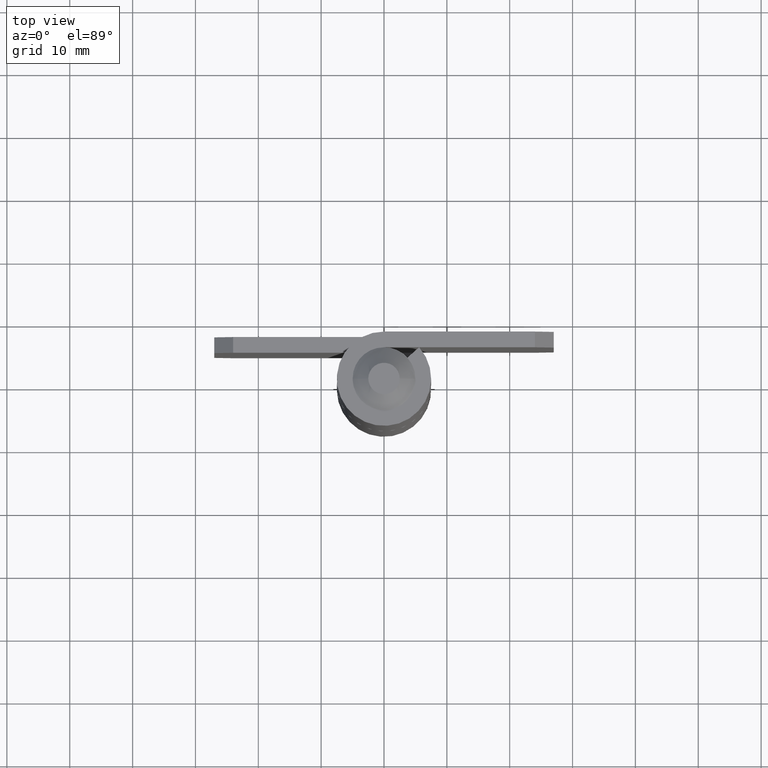
[diagram: clean part render]
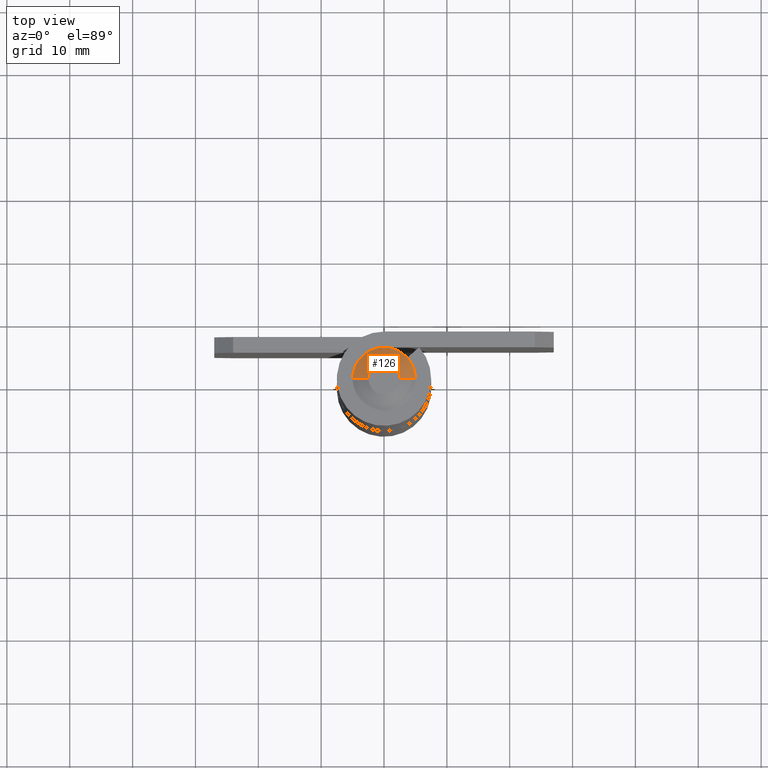
[diagram: same view with one face highlighted and labeled with its STEP entity id]
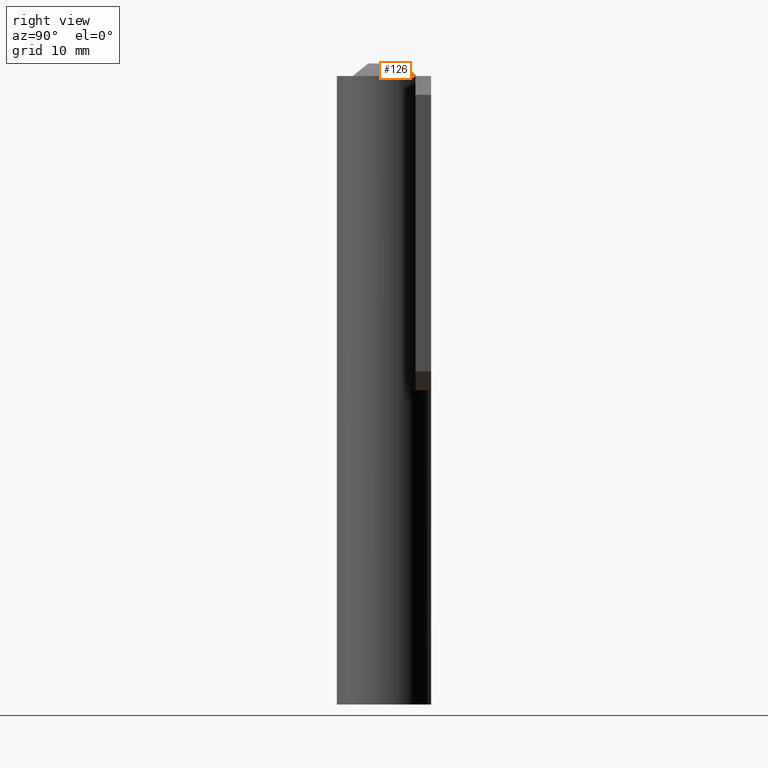
[diagram: same view with one face highlighted and labeled with its STEP entity id]
A machine part, top view. The second image highlights one B-rep face of the part: STEP entity #126.
A second angle (right view) of the same face is appended — the face is thin or edge-on in the first view.
In plain terms, the highlighted face is a freeform B-spline surface patch.
Its self-contained STEP definition (entity closure, byte-faithful):
#126=ADVANCED_FACE('',(#280),#279,.T.);
#279=( BOUNDED_SURFACE() B_SPLINE_SURFACE( 2,1,((#485,#486),(#487,#488),(#489,#490),(#491,#492),(#493,#494)), .UNSPECIFIED.,.F.,.F.,.F.) B_SPLINE_SURFACE_WITH_KNOTS((3,2,3),(2,2),(0.00000000000E+000,5.00000000000E-001,1.00000000000E+000),(0.00000000000E+000,1.00000000000E+000), .UNSPECIFIED. ) GEOMETRIC_REPRESENTATION_ITEM() RATIONAL_B_SPLINE_SURFACE(((1.00000000000E+000,1.00000000000E+000),(7.07106781187E-001,7.07106781187E-001),(1.00000000000E+000,1.00000000000E+000),(7.07106781187E-001,7.07106781187E-001),(1.00000000000E+000,1.00000000000E+000))) REPRESENTATION_ITEM('') SURFACE() );
#280=FACE_OUTER_BOUND('',#495,.T.);
#485=CARTESIAN_POINT('',(1.42108547152E-014,0.00000000000E+000,5.40000000000E+001));
#486=CARTESIAN_POINT('',(-7.07106781187E+000,8.65956056235E-016,4.83431457505E+001));
#487=CARTESIAN_POINT('',(1.42108547152E-014,0.00000000000E+000,5.40000000000E+001));
#488=CARTESIAN_POINT('',(-7.07106781187E+000,7.07106781187E+000,4.83431457505E+001));
#489=CARTESIAN_POINT('',(1.42108547152E-014,0.00000000000E+000,5.40000000000E+001));
#490=CARTESIAN_POINT('',(1.46438327433E-014,7.07106781187E+000,4.83431457505E+001));
#491=CARTESIAN_POINT('',(1.42108547152E-014,0.00000000000E+000,5.40000000000E+001));
#492=CARTESIAN_POINT('',(7.07106781187E+000,7.07106781187E+000,4.83431457505E+001));
#493=CARTESIAN_POINT('',(1.42108547152E-014,0.00000000000E+000,5.40000000000E+001));
#494=CARTESIAN_POINT('',(7.07106781187E+000,0.00000000000E+000,4.83431457505E+001));
#495=EDGE_LOOP('',(#636,#637,#638,#639,#640,#641));
#636=ORIENTED_EDGE('',*,*,#709,.F.);
#637=ORIENTED_EDGE('',*,*,#735,.T.);
#638=ORIENTED_EDGE('',*,*,#714,.T.);
#639=ORIENTED_EDGE('',*,*,#732,.F.);
#640=ORIENTED_EDGE('',*,*,#716,.T.);
#641=ORIENTED_EDGE('',*,*,#736,.F.);
#709=EDGE_CURVE('',#834,#833,#841,.T.);
#714=EDGE_CURVE('',#875,#868,#876,.T.);
#716=EDGE_CURVE('',#847,#882,#889,.T.);
#732=EDGE_CURVE('',#847,#868,#993,.T.);
#735=EDGE_CURVE('',#834,#875,#1011,.T.);
#736=EDGE_CURVE('',#833,#882,#1017,.T.);
#833=VERTEX_POINT('',#1237);
#834=VERTEX_POINT('',#1238);
#841=CIRCLE('',#1246,2.50000000000E+000);
#847=VERTEX_POINT('',#1247);
#868=VERTEX_POINT('',#1260);
#875=VERTEX_POINT('',#1264);
#876=CIRCLE('',#1268,5.00000000000E+000);
#882=VERTEX_POINT('',#1269);
#889=CIRCLE('',#1277,5.00000000000E+000);
#993=CIRCLE('',#1338,5.00000000000E+000);
#1011=(BOUNDED_CURVE() B_SPLINE_CURVE(1,(#1345,#1346),.UNSPECIFIED.,.F.,.F.) B_SPLINE_CURVE_WITH_KNOTS((2,2),(3.53553391166E-001,7.07106780828E-001),.UNSPECIFIED.) CURVE() GEOMETRIC_REPRESENTATION_ITEM() RATIONAL_B_SPLINE_CURVE((1.00000000000E+000,1.00000000000E+000)) REPRESENTATION_ITEM('') );
#1017=(BOUNDED_CURVE() B_SPLINE_CURVE(1,(#1347,#1348),.UNSPECIFIED.,.F.,.F.) B_SPLINE_CURVE_WITH_KNOTS((2,2),(3.53553383113E-001,7.07106605949E-001),.UNSPECIFIED.) CURVE() GEOMETRIC_REPRESENTATION_ITEM() RATIONAL_B_SPLINE_CURVE((7.50000000000E-001,7.50000000000E-001)) REPRESENTATION_ITEM('') );
#1237=CARTESIAN_POINT('',(-2.50000000000E+000,0.00000000000E+000,5.20000000000E+001));
#1238=CARTESIAN_POINT('',(2.50000000000E+000,2.96059473233E-016,5.20000000000E+001));
#1243=CARTESIAN_POINT('',(1.42108547152E-014,0.00000000000E+000,5.20000000000E+001));
#1244=DIRECTION('',(0.00000000000E+000,0.00000000000E+000,1.00000000000E+000));
#1245=DIRECTION('',(-1.00000000000E+000,-1.22460635382E-016,0.00000000000E+000));
#1246=AXIS2_PLACEMENT_3D('',#1243,#1244,#1245);
#1247=CARTESIAN_POINT('',(-6.84226338139E-015,5.00000000000E+000,5.00000000000E+001));
#1260=CARTESIAN_POINT('',(3.72736168215E+000,3.33268283676E+000,5.00000000000E+001));
#1264=CARTESIAN_POINT('',(5.00000000000E+000,-1.95942401143E-008,5.00000000000E+001));
#1265=CARTESIAN_POINT('',(1.42108547152E-014,0.00000000000E+000,5.00000000000E+001));
#1266=DIRECTION('',(0.00000000000E+000,0.00000000000E+000,1.00000000000E+000));
#1267=DIRECTION('',(-4.25720114543E-015,1.00000000000E+000,0.00000000000E+000));
#1268=AXIS2_PLACEMENT_3D('',#1265,#1266,#1267);
#1269=CARTESIAN_POINT('',(-4.99999997307E+000,-5.18931670675E-004,5.00000000000E+001));
#1274=CARTESIAN_POINT('',(1.42108547152E-014,0.00000000000E+000,5.00000000000E+001));
#1275=DIRECTION('',(0.00000000000E+000,0.00000000000E+000,1.00000000000E+000));
#1276=DIRECTION('',(-4.25720114543E-015,1.00000000000E+000,0.00000000000E+000));
#1277=AXIS2_PLACEMENT_3D('',#1274,#1275,#1276);
#1335=CARTESIAN_POINT('',(1.42108547152E-014,0.00000000000E+000,5.00000000000E+001));
#1336=DIRECTION('',(0.00000000000E+000,0.00000000000E+000,-1.00000000000E+000));
#1337=DIRECTION('',(-1.00000000000E+000,-0.00000000000E+000,-0.00000000000E+000));
#1338=AXIS2_PLACEMENT_3D('',#1335,#1336,#1337);
#1345=CARTESIAN_POINT('',(2.50000000405E+000,-6.12303177903E-016,5.19999999968E+001));
#1346=CARTESIAN_POINT('',(4.99999999747E+000,-1.22460635320E-015,5.00000000020E+001));
#1347=CARTESIAN_POINT('',(-2.49999994711E+000,7.32709798551E-016,5.20000000423E+001));
#1348=CARTESIAN_POINT('',(-4.99999876089E+000,1.46541926494E-015,5.00000009913E+001));